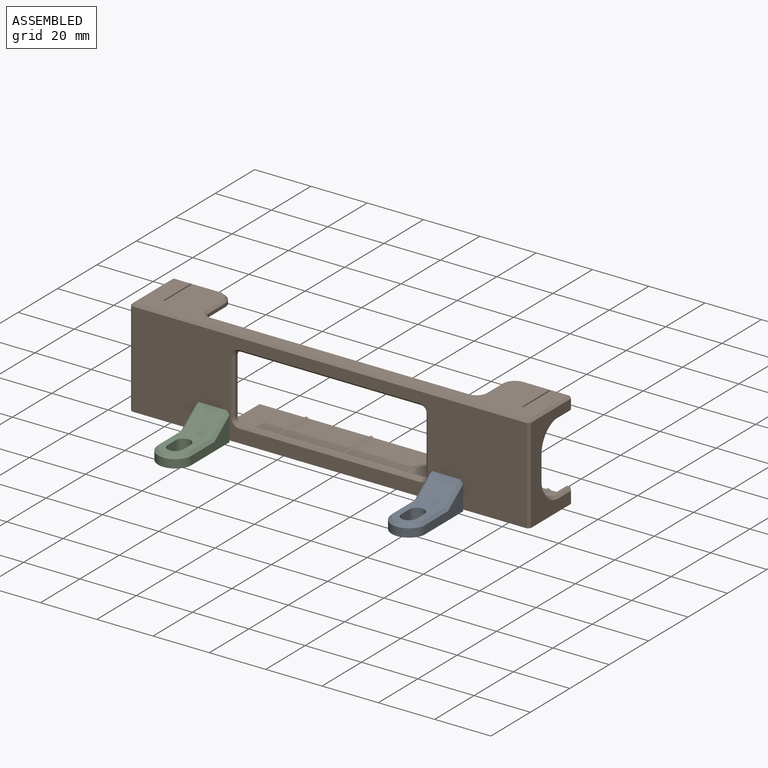
[diagram: assembled view]
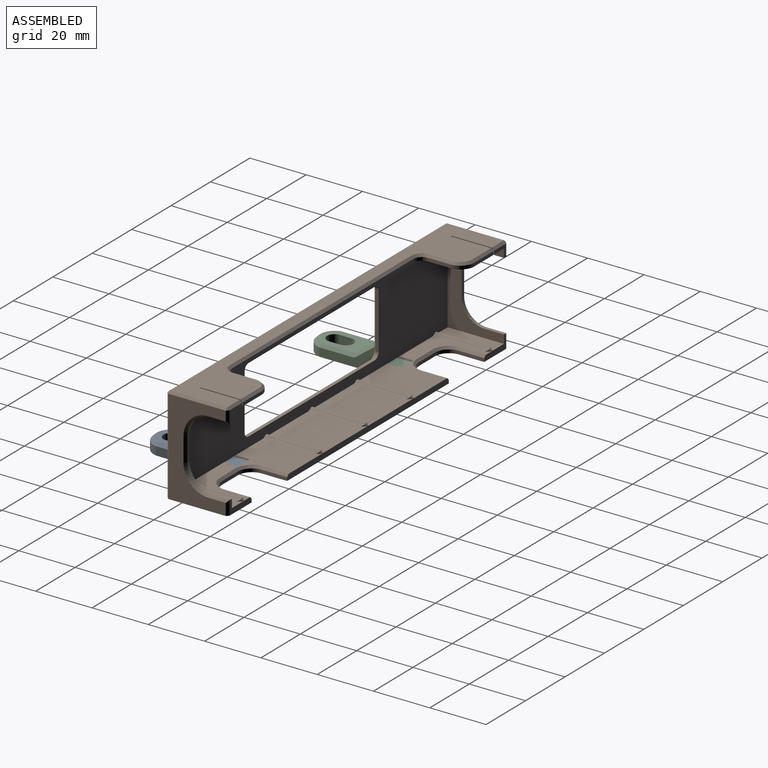
[diagram: assembled view, second angle]
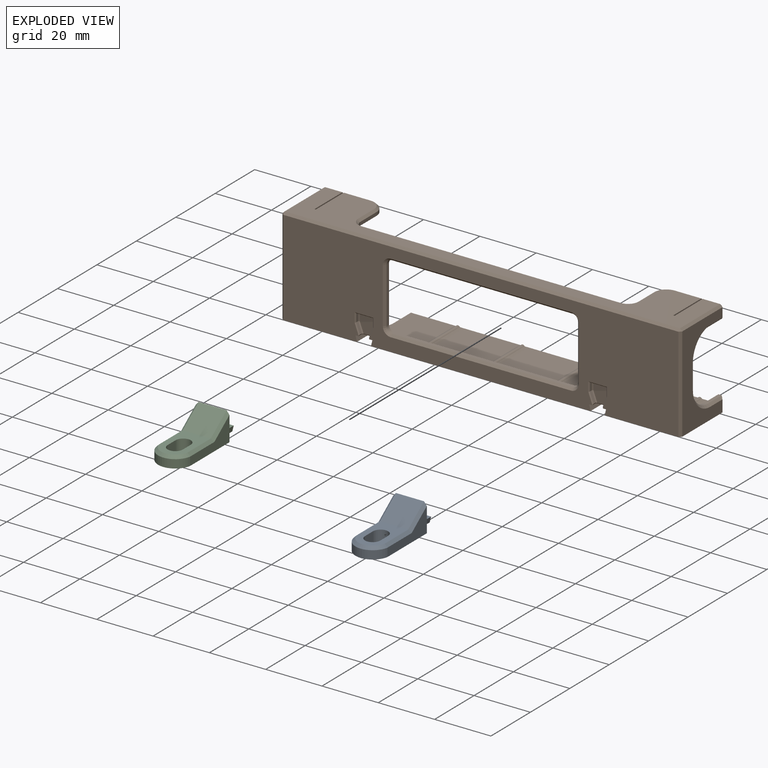
[diagram: exploded view]
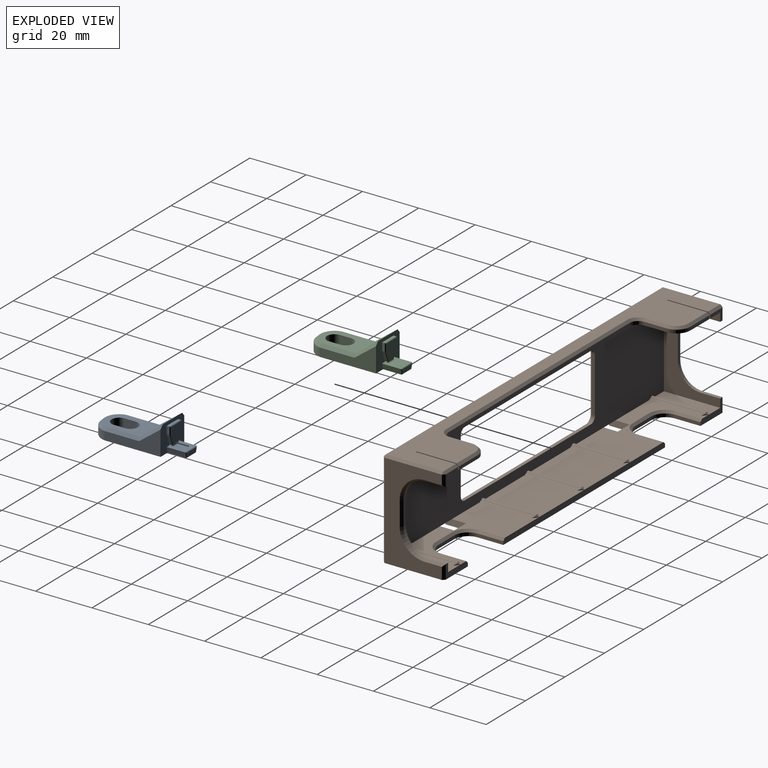
[diagram: exploded view, second angle]
ASSEMBLY  parts=3 mates=2
PART A: 40 faces, bbox 12x31.8x10 mm
  f0: plane 12x10mm, normal (0,1,0), area 74.6mm2, adj f1,f2,f3,f4,f5,f7,f8,f15
  f1: plane 6.6x5.8mm, normal (0,0,1), area 33.7mm2, adj f0,f7,f8,f27,f30,f32,f34,f35
  f2: plane 20x8.75mm, normal (1,0,0), area 82mm2, adj f0,f3,f10,f15,f17
  f3: plane 31.6x12mm, normal (0,0,-1), area 272.3mm2, adj f0,f2,f4,f7,f8,f10,f11,f12
  f4: plane 20x8.75mm, normal (-1,0,0), area 82mm2, adj f0,f3,f10,f16,f18
  f5: plane 10x8mm, normal (0,-0.6,0.8), area 100mm2, adj f0,f6,f15,f16
  f6: plane 16x10mm, normal (0,0,1), area 105.2mm2, adj f5,f11,f12,f13,f14,f17,f18,f19
  f7: plane 6.6x2mm, normal (0.97,0,-0.24), area 13.6mm2, adj f0,f1,f3,f39
  f8: plane 6.6x2mm, normal (-0.97,0,-0.24), area 13.6mm2, adj f0,f1,f3,f36
  f9: plane 5.29x1.6mm, normal (0,1,0), area 7.8mm2, adj f36,f37,f38,f39
  f10: cylinder r=6.1mm len=12mm, axis (0,0,-1), area 50.9mm2, adj f2,f3,f4,f19
  f11: cylinder r=2.7mm len=5.4mm, axis (0,0,-1), area 33.9mm2, adj f3,f6,f12,f13
  f12: plane 4x4mm, normal (1,0,0), area 16mm2, adj f3,f6,f11,f14
  f13: plane 4x4mm, normal (-1,0,0), area 16mm2, adj f3,f6,f11,f14
  f14: cylinder r=2.7mm len=5.4mm, axis (0,0,-1), area 33.9mm2, adj f3,f6,f12,f13
  f15: plane 8x7mm, normal (0.71,-0.42,0.57), area 13.8mm2, adj f0,f2,f5,f17
  f16: plane 8x7mm, normal (-0.71,-0.42,0.57), area 13.8mm2, adj f0,f4,f5,f18
  f17: plane 12.34x1.01mm, normal (0.71,0,0.71), area 17.1mm2, adj f2,f6,f15,f19
  f18: plane 12.34x1.01mm, normal (-0.71,0,0.71), area 17.1mm2, adj f4,f6,f16,f19
  f19: cone r=6.1mm half-angle=45deg, axis (0,0,-1), area 21.9mm2, adj f6,f10,f17,f18
  f20: plane 3.73x1.4mm, normal (-0.94,0,-0.35), area 4mm2, adj f0,f21,f33,f35
  f21: plane 2.8x1mm, normal (-1,0,0), area 2.8mm2, adj f0,f20,f22,f31
  f22: plane 5.8x1mm, normal (0,0,1), area 5.8mm2, adj f0,f21,f23,f29
  f23: plane 2.8x1mm, normal (1,0,0), area 2.8mm2, adj f0,f22,f24,f26
  f24: plane 3.73x1.4mm, normal (0.94,0,-0.35), area 4mm2, adj f0,f23,f27,f28
  f25: plane 6.4x5.4mm, normal (0,1,0), area 29mm2, adj f26,f28,f29,f31,f32,f33
  f26: plane 2.8x0.2mm, normal (0.71,0.71,0), area 0.8mm2, adj f23,f25,f28,f29
  f27: plane 1x0.27mm, normal (0.82,0,0.57), area 0.3mm2, adj f0,f1,f24,f30
  f28: plane 3.84x1.64mm, normal (0.66,0.71,-0.25), area 1.1mm2, adj f24,f25,f26,f30
  f29: plane 5.8x0.2mm, normal (0,0.71,0.71), area 1.6mm2, adj f22,f25,f26,f31
  f30: bspline ~0.43x0.4mm, area 0.1mm2, adj f1,f27,f28,f32
  f31: plane 2.8x0.2mm, normal (-0.71,0.71,0), area 0.8mm2, adj f21,f25,f29,f33
  f32: plane 2.52x0.2mm, normal (0,0.71,0.71), area 0.7mm2, adj f1,f25,f30,f34
  f33: plane 3.84x1.64mm, normal (-0.66,0.71,-0.25), area 1.1mm2, adj f20,f25,f31,f34
  f34: bspline ~0.43x0.4mm, area 0.1mm2, adj f1,f32,f33,f35
  f35: plane 1x0.27mm, normal (-0.82,0,0.57), area 0.3mm2, adj f0,f1,f20,f34
  f36: plane 2x0.66mm, normal (-0.69,0.71,-0.17), area 0.5mm2, adj f8,f9,f37,f38
  f37: plane 5.8x0.2mm, normal (0,0.71,0.71), area 1.6mm2, adj f1,f9,f36,f39
  f38: plane 4.8x0.2mm, normal (0,0.71,-0.71), area 1.3mm2, adj f3,f9,f36,f39
  f39: plane 2x0.66mm, normal (0.69,0.71,-0.17), area 0.5mm2, adj f7,f9,f37,f38
PART B: 187 faces, bbox 142x22x34.6 mm
  f0: plane 2x1.71mm, normal (0,0,-1), area 2.3mm2, adj f2,f16,f71,f174,f176
  f1: plane 2x1.71mm, normal (0,0,-1), area 2.3mm2, adj f2,f16,f67,f159,f161
  f2: plane 140.4x33.8mm, normal (0,-1,0), area 2891.6mm2, adj f0,f1,f3,f12,f66,f67,f69,f70
  f3: plane 2x1.71mm, normal (0,0,-1), area 2.3mm2, adj f2,f16,f66,f149,f153
  f4: plane 22.8x20mm, normal (0,0,1), area 402.1mm2, adj f10,f16,f78,f81,f182,f183
  f5: plane 22.8x20mm, normal (0,0,1), area 402.1mm2, adj f10,f16,f78,f80,f184,f185
  f6: plane 39.8x20mm, normal (0,0,1), area 436.4mm2, adj f10,f11,f16,f70,f71,f72,f79,f80
  f7: plane 39.8x20mm, normal (0,0,1), area 436.4mm2, adj f10,f13,f16,f66,f67,f68,f81,f82
  f8: plane 20x5.9mm, normal (0,0,1), area 91mm2, adj f13,f16,f22,f82,f177
  f9: plane 20x5.9mm, normal (0,0,1), area 91mm2, adj f11,f16,f21,f79,f180
  f10: plane 82x2.1mm, normal (0,1,0), area 163.4mm2, adj f4,f5,f6,f7,f12,f58,f60,f78
  f11: plane 11.2x5mm, normal (0,1,0), area 25.7mm2, adj f6,f9,f12,f21,f51,f57,f79,f96
  f12: plane 142x22mm, normal (0,0,-1), area 2570.2mm2, adj f2,f10,f11,f13,f15,f23,f56,f57
  f13: plane 11.2x5mm, normal (0,1,0), area 25.7mm2, adj f7,f8,f12,f22,f50,f61,f82,f101
  f14: plane 6.2x4.2mm, normal (0,1,0), area 11mm2, adj f18,f22,f32,f49,f116,f117
  f15: plane 33.8x20.4mm, normal (-1,0,0), area 329.8mm2, adj f12,f123,f124,f126,f128,f129,f131,f132
  f16: plane 138x30.6mm, normal (0,1,0), area 2615mm2, adj f0,f1,f3,f4,f5,f6,f7,f8
  f17: plane 140.4x20.4mm, normal (0,0,1), area 1255mm2, adj f32,f33,f34,f35,f36,f37,f83,f84
  f18: plane 138x20mm, normal (0,0,-1), area 1170.1mm2, adj f14,f16,f19,f20,f21,f22,f24,f25
  f19: plane 6.2x4.2mm, normal (0,1,0), area 11mm2, adj f18,f21,f36,f55,f127,f132
  f20: plane 9.5x1.2mm, normal (0,1,0), area 11.4mm2, adj f18,f25,f33,f83
  f21: plane 30.6x20mm, normal (1,0,0), area 270.5mm2, adj f9,f11,f16,f18,f19,f51,f52,f53
  f22: plane 30.6x20mm, normal (-1,0,0), area 270.5mm2, adj f8,f13,f14,f16,f18,f46,f47,f48
  f23: plane 33.8x20.4mm, normal (1,0,0), area 329.8mm2, adj f12,f110,f111,f112,f113,f114,f115,f117
  f24: plane 9.5x1.2mm, normal (0,1,0), area 11.4mm2, adj f18,f26,f35,f91
  f25: cylinder r=5mm len=5mm, axis (0,0,1), area 9.4mm2, adj f18,f20,f31,f84
  f26: cylinder r=5mm len=5mm, axis (0,0,1), area 9.4mm2, adj f18,f24,f27,f90
  f27: plane 8x1.2mm, normal (1,0,0), area 9.6mm2, adj f18,f26,f28,f89
  f28: cylinder r=3mm len=3mm, axis (0,0,1), area 5.7mm2, adj f18,f27,f29,f88
  f29: plane 92x1.2mm, normal (0,1,0), area 110.4mm2, adj f18,f28,f30,f87
  f30: cylinder r=3mm len=3mm, axis (0,0,1), area 5.7mm2, adj f18,f29,f31,f86
  f31: plane 8x1.2mm, normal (-1,0,0), area 9.6mm2, adj f18,f25,f30,f85
  f32: plane 15x2mm, normal (-1,0,0), area 29.7mm2, adj f14,f17,f18,f34,f116
  f33: plane 15x2mm, normal (1,0,0), area 29.7mm2, adj f17,f18,f20,f34,f83
  f34: plane 2x0.5mm, normal (0,1,0), area 1mm2, adj f17,f18,f32,f33
  f35: plane 15x2mm, normal (-1,0,0), area 29.7mm2, adj f17,f18,f24,f37,f91
  f36: plane 15x2mm, normal (1,0,0), area 29.7mm2, adj f17,f18,f19,f37,f127
  f37: plane 2x0.5mm, normal (0,1,0), area 1mm2, adj f17,f18,f35,f36
  f38: cylinder r=2mm len=2mm, axis (0,1,0), area 3.8mm2, adj f16,f39,f43,f108
  f39: plane 19.6x1.2mm, normal (1,0,0), area 23.5mm2, adj f16,f38,f40,f109
  f40: cylinder r=2mm len=2mm, axis (0,1,0), area 3.8mm2, adj f16,f39,f41,f107
  f41: plane 64x1.2mm, normal (0,0,-1), area 76.8mm2, adj f16,f40,f42,f105
  f42: cylinder r=2mm len=2mm, axis (0,1,0), area 3.8mm2, adj f16,f41,f44,f103
  f43: plane 64x1.2mm, normal (0,0,1), area 76.8mm2, adj f16,f38,f45,f106
  f44: plane 19.6x1.2mm, normal (-1,0,0), area 23.5mm2, adj f16,f42,f45,f102
  f45: cylinder r=2mm len=2mm, axis (0,1,0), area 3.8mm2, adj f16,f43,f44,f104
  f46: cylinder r=8mm len=8mm, axis (-1,0,0), area 15.1mm2, adj f22,f47,f49,f114
  f47: plane 8.6x1.2mm, normal (0,1,0), area 10.3mm2, adj f22,f46,f48,f113
  f48: cylinder r=8mm len=8mm, axis (-1,0,0), area 15.1mm2, adj f22,f47,f50,f112
  f49: plane 7x1.2mm, normal (0,0,-1), area 8.4mm2, adj f14,f22,f46,f115
  f50: plane 7x1.2mm, normal (0,0,1), area 8.4mm2, adj f13,f22,f48,f111
  f51: plane 7x1.2mm, normal (0,0,1), area 8.4mm2, adj f11,f21,f52,f126
  f52: cylinder r=8mm len=8mm, axis (-1,0,0), area 15.1mm2, adj f21,f51,f53,f129
  f53: plane 8.6x1.2mm, normal (0,1,0), area 10.3mm2, adj f21,f52,f54,f131
  f54: cylinder r=8mm len=8mm, axis (-1,0,0), area 15.1mm2, adj f21,f53,f55,f133
  f55: plane 7x1.2mm, normal (0,0,-1), area 8.4mm2, adj f19,f21,f54,f134
  f56: plane 8x1.2mm, normal (0,1,0), area 9.6mm2, adj f12,f62,f63,f94
  f57: plane 9x1.2mm, normal (1,0,0), area 10.8mm2, adj f11,f12,f63,f96
  f58: plane 9x1.2mm, normal (-1,0,0), area 10.8mm2, adj f10,f12,f62,f92
  f59: plane 8x1.2mm, normal (0,1,0), area 9.6mm2, adj f12,f64,f65,f99
  f60: plane 9x1.2mm, normal (1,0,0), area 10.8mm2, adj f10,f12,f65,f97
  f61: plane 9x1.2mm, normal (-1,0,0), area 10.8mm2, adj f12,f13,f64,f101
  f62: cylinder r=5mm len=5mm, axis (0,0,1), area 9.4mm2, adj f12,f56,f58,f93
  f63: cylinder r=5mm len=5mm, axis (0,0,-1), area 9.4mm2, adj f12,f56,f57,f95
  f64: cylinder r=5mm len=5mm, axis (0,0,1), area 9.4mm2, adj f12,f59,f61,f100
  f65: cylinder r=5mm len=5mm, axis (0,0,-1), area 9.4mm2, adj f12,f59,f60,f98
  f66: plane 7x2mm, normal (0.97,0,0.24), area 14.4mm2, adj f2,f3,f7,f12,f68
  f67: plane 7x2mm, normal (-0.97,0,0.24), area 14.4mm2, adj f1,f2,f7,f12,f68
  f68: plane 6x2mm, normal (0,-1,0), area 11mm2, adj f7,f12,f66,f67
  f69: plane 2x1.71mm, normal (0,0,-1), area 2.3mm2, adj f2,f16,f70,f164,f168
  f70: plane 7x2mm, normal (0.97,0,0.24), area 14.4mm2, adj f2,f6,f12,f69,f72
  f71: plane 7x2mm, normal (-0.97,0,0.24), area 14.4mm2, adj f0,f2,f6,f12,f72
  f72: plane 6x2mm, normal (0,-1,0), area 11mm2, adj f6,f12,f70,f71
  f73: cylinder r=0.8mm len=19.3mm, axis (0,-1,0), area 30.3mm2, adj f16,f82,f177,f178
  f74: cylinder r=0.8mm len=19.3mm, axis (0,-1,0), area 30.3mm2, adj f16,f81,f181,f182
  f75: cylinder r=0.8mm len=19.3mm, axis (0,-1,0), area 30.3mm2, adj f16,f79,f179,f180
  f76: cylinder r=0.8mm len=19.3mm, axis (0,-1,0), area 30.3mm2, adj f16,f80,f185,f186
  f77: cylinder r=0.8mm len=19.3mm, axis (0,-1,0), area 30.3mm2, adj f16,f78,f183,f184
  f78: cone r=0.1mm half-angle=45deg, axis (0,-1,0), area 1.8mm2, adj f4,f5,f10,f77,f183,f184
  f79: cone r=0.8mm half-angle=45deg, axis (0,-1,0), area 1.8mm2, adj f6,f9,f11,f75,f179,f180
  f80: cone r=0.8mm half-angle=45deg, axis (0,-1,0), area 1.8mm2, adj f5,f6,f10,f76,f185,f186
  f81: cone r=0.1mm half-angle=45deg, axis (0,-1,0), area 1.8mm2, adj f4,f7,f10,f74,f181,f182
  f82: cone r=0.1mm half-angle=45deg, axis (0,-1,0), area 1.8mm2, adj f7,f8,f13,f73,f177,f178
  f83: plane 9.5x0.8mm, normal (0,0.71,0.71), area 10.7mm2, adj f17,f20,f33,f84
  f84: cone r=4.2mm half-angle=45deg, axis (0,0,-1), area 8.2mm2, adj f17,f25,f83,f85
  f85: plane 8x0.8mm, normal (-0.71,0,0.71), area 9.1mm2, adj f17,f31,f84,f86
  f86: cone r=3mm half-angle=45deg, axis (0,0,1), area 6mm2, adj f17,f30,f85,f87
  f87: plane 92x0.8mm, normal (0,0.71,0.71), area 104.1mm2, adj f17,f29,f86,f88
  f88: cone r=3mm half-angle=45deg, axis (0,0,1), area 6mm2, adj f17,f28,f87,f89
  f89: plane 8x0.8mm, normal (0.71,0,0.71), area 9.1mm2, adj f17,f27,f88,f90
  f90: cone r=4.2mm half-angle=45deg, axis (0,0,-1), area 8.2mm2, adj f17,f26,f89,f91
  f91: plane 9.5x0.8mm, normal (0,0.71,0.71), area 10.7mm2, adj f17,f24,f35,f90
  f92: plane 9x0.8mm, normal (-0.71,0,0.71), area 10.2mm2, adj f6,f10,f58,f93
  f93: cone r=5.8mm half-angle=45deg, axis (0,0,1), area 9.6mm2, adj f6,f62,f92,f94
  f94: plane 8x0.8mm, normal (0,0.71,0.71), area 9.1mm2, adj f6,f56,f93,f95
  f95: cone r=5.8mm half-angle=45deg, axis (0,0,1), area 9.6mm2, adj f6,f63,f94,f96
  f96: plane 9x0.8mm, normal (0.71,0,0.71), area 10.2mm2, adj f6,f11,f57,f95
  f97: plane 9x0.8mm, normal (0.71,0,0.71), area 10.2mm2, adj f7,f10,f60,f98
  f98: cone r=5.8mm half-angle=45deg, axis (0,0,1), area 9.6mm2, adj f7,f65,f97,f99
  f99: plane 8x0.8mm, normal (0,0.71,0.71), area 9.1mm2, adj f7,f59,f98,f100
  f100: cone r=5.8mm half-angle=45deg, axis (0,0,1), area 9.6mm2, adj f7,f64,f99,f101
  f101: plane 9x0.8mm, normal (-0.71,0,0.71), area 10.2mm2, adj f7,f13,f61,f100
  f102: plane 19.6x0.8mm, normal (-0.71,-0.71,0), area 22.2mm2, adj f2,f44,f103,f104
  f103: cone r=2.8mm half-angle=45deg, axis (0,-1,0), area 4.3mm2, adj f2,f42,f102,f105
  f104: cone r=2.8mm half-angle=45deg, axis (0,-1,0), area 4.3mm2, adj f2,f45,f102,f106
  f105: plane 64x0.8mm, normal (0,-0.71,-0.71), area 72.4mm2, adj f2,f41,f103,f107
  f106: plane 64x0.8mm, normal (0,-0.71,0.71), area 72.4mm2, adj f2,f43,f104,f108
  f107: cone r=2.8mm half-angle=45deg, axis (0,-1,0), area 4.3mm2, adj f2,f40,f105,f109
  f108: cone r=2.8mm half-angle=45deg, axis (0,-1,0), area 4.3mm2, adj f2,f38,f106,f109
  f109: plane 19.6x0.8mm, normal (0.71,-0.71,0), area 22.2mm2, adj f2,f39,f107,f108
  f110: plane 5x0.8mm, normal (0.71,0.71,0), area 5.2mm2, adj f12,f13,f23,f111
  f111: plane 7x0.8mm, normal (0.71,0,0.71), area 7.5mm2, adj f23,f50,f110,f112
  f112: cone r=8.8mm half-angle=45deg, axis (1,0,0), area 14.9mm2, adj f23,f48,f111,f113
  f113: plane 8.6x0.8mm, normal (0.71,0.71,0), area 9.7mm2, adj f23,f47,f112,f114
  f114: cone r=8.8mm half-angle=45deg, axis (1,0,0), area 14.9mm2, adj f23,f46,f113,f115
  f115: plane 7x0.8mm, normal (0.71,0,-0.71), area 7.5mm2, adj f23,f49,f114,f117
  f116: plane 6.2x0.8mm, normal (0,0.71,0.71), area 7mm2, adj f14,f17,f32,f118
  f117: plane 4.2x0.8mm, normal (0.71,0.71,0), area 4.3mm2, adj f14,f23,f115,f118
  f118: plane 0.8x0.8mm, normal (0.58,0.58,0.58), area 0.6mm2, adj f116,f117,f119
  f119: plane 20.4x0.8mm, normal (0.71,0,0.71), area 23.1mm2, adj f17,f23,f118,f121
  f120: plane 33.8x0.8mm, normal (0.71,-0.71,0), area 38.2mm2, adj f2,f12,f23,f121
  f121: plane 0.8x0.8mm, normal (0.58,-0.58,0.58), area 0.6mm2, adj f119,f120,f122
  f122: plane 140.4x0.8mm, normal (0,-0.71,0.71), area 158.8mm2, adj f2,f17,f121,f125
  f123: plane 33.8x0.8mm, normal (-0.71,-0.71,0), area 38.2mm2, adj f2,f12,f15,f125
  f124: plane 5x0.8mm, normal (-0.71,0.71,0), area 5.2mm2, adj f11,f12,f15,f126
  f125: plane 0.8x0.8mm, normal (-0.58,-0.58,0.58), area 0.6mm2, adj f122,f123,f128
  f126: plane 7x0.8mm, normal (-0.71,0,0.71), area 7.5mm2, adj f15,f51,f124,f129
  f127: plane 6.2x0.8mm, normal (0,0.71,0.71), area 7mm2, adj f17,f19,f36,f130
  f128: plane 20.4x0.8mm, normal (-0.71,0,0.71), area 23.1mm2, adj f15,f17,f125,f130
  f129: cone r=8mm half-angle=45deg, axis (-1,0,0), area 14.9mm2, adj f15,f52,f126,f131
  f130: plane 0.8x0.8mm, normal (-0.58,0.58,0.58), area 0.6mm2, adj f127,f128,f132
  f131: plane 8.6x0.8mm, normal (-0.71,0.71,0), area 9.7mm2, adj f15,f53,f129,f133
  f132: plane 4.2x0.8mm, normal (-0.71,0.71,0), area 4.3mm2, adj f15,f19,f130,f134
  f133: cone r=8mm half-angle=45deg, axis (-1,0,0), area 14.9mm2, adj f15,f54,f131,f134
  f134: plane 7x0.8mm, normal (-0.71,0,-0.71), area 7.5mm2, adj f15,f55,f132,f133
  f135: plane 3.59x1.35mm, normal (-0.94,0,0.35), area 4.2mm2, adj f136,f172,f175,f176
  f136: plane 3x1.1mm, normal (-1,0,0), area 3.3mm2, adj f135,f137,f169,f173
  f137: plane 6x1.1mm, normal (0,0,-1), area 6.6mm2, adj f136,f138,f166,f170
  f138: plane 3x1.1mm, normal (1,0,0), area 3.3mm2, adj f137,f139,f162,f167
  f139: plane 3.59x1.35mm, normal (0.94,0,0.35), area 4.2mm2, adj f138,f163,f164,f165
  f140: plane 6.4x5.4mm, normal (0,-1,0), area 29.3mm2, adj f162,f165,f166,f169,f171,f172
  f141: plane 3.59x1.35mm, normal (0.94,0,0.35), area 4.2mm2, adj f145,f148,f149,f150
  f142: plane 3.59x1.35mm, normal (-0.94,0,0.35), area 4.2mm2, adj f143,f157,f160,f161
  f143: plane 3x1.1mm, normal (-1,0,0), area 3.3mm2, adj f142,f144,f154,f158
  f144: plane 6x1.1mm, normal (0,0,-1), area 6.6mm2, adj f143,f145,f151,f155
  f145: plane 3x1.1mm, normal (1,0,0), area 3.3mm2, adj f141,f144,f147,f152
  f146: plane 6.4x5.4mm, normal (0,-1,0), area 29.3mm2, adj f147,f150,f151,f154,f156,f157
  f147: plane 3x0.3mm, normal (0.71,-0.71,0), area 1.2mm2, adj f145,f146,f150,f151
  f148: plane 3.89x1.65mm, normal (0.66,-0.71,0.25), area 1.7mm2, adj f2,f141,f149,f152
  f149: plane 1.4x0.41mm, normal (0.82,0,-0.57), area 0.6mm2, adj f2,f3,f141,f148,f153
  f150: plane 3.75x1.71mm, normal (0.66,-0.71,0.25), area 1.7mm2, adj f141,f146,f147,f153
  f151: plane 6x0.3mm, normal (0,-0.71,-0.71), area 2.4mm2, adj f144,f146,f147,f154
  f152: plane 3.35x0.3mm, normal (0.71,-0.71,0), area 1.3mm2, adj f2,f145,f148,f155
  f153: bspline ~0.64x0.6mm, area 0.3mm2, adj f3,f149,f150,f156
  f154: plane 3x0.3mm, normal (-0.71,-0.71,0), area 1.2mm2, adj f143,f146,f151,f157
  f155: plane 6.6x0.3mm, normal (0,-0.71,-0.71), area 2.7mm2, adj f2,f144,f152,f158
  f156: plane 2.58x0.3mm, normal (0,-0.71,-0.71), area 1.1mm2, adj f16,f146,f153,f159
  f157: plane 3.75x1.71mm, normal (-0.66,-0.71,0.25), area 1.7mm2, adj f142,f146,f154,f159
  f158: plane 3.35x0.3mm, normal (-0.71,-0.71,0), area 1.3mm2, adj f2,f143,f155,f160
  f159: bspline ~0.64x0.6mm, area 0.3mm2, adj f1,f156,f157,f161
  f160: plane 3.89x1.65mm, normal (-0.66,-0.71,0.25), area 1.7mm2, adj f2,f142,f158,f161
  f161: plane 1.4x0.41mm, normal (-0.82,0,-0.57), area 0.6mm2, adj f1,f2,f142,f159,f160
  f162: plane 3x0.3mm, normal (0.71,-0.71,0), area 1.2mm2, adj f138,f140,f165,f166
  f163: plane 3.89x1.65mm, normal (0.66,-0.71,0.25), area 1.7mm2, adj f2,f139,f164,f167
  f164: plane 1.4x0.41mm, normal (0.82,0,-0.57), area 0.6mm2, adj f2,f69,f139,f163,f168
  f165: plane 3.75x1.71mm, normal (0.66,-0.71,0.25), area 1.7mm2, adj f139,f140,f162,f168
  f166: plane 6x0.3mm, normal (0,-0.71,-0.71), area 2.4mm2, adj f137,f140,f162,f169
  f167: plane 3.35x0.3mm, normal (0.71,-0.71,0), area 1.3mm2, adj f2,f138,f163,f170
  f168: bspline ~0.64x0.6mm, area 0.3mm2, adj f69,f164,f165,f171
  f169: plane 3x0.3mm, normal (-0.71,-0.71,0), area 1.2mm2, adj f136,f140,f166,f172
  f170: plane 6.6x0.3mm, normal (0,-0.71,-0.71), area 2.7mm2, adj f2,f137,f167,f173
  f171: plane 2.58x0.3mm, normal (0,-0.71,-0.71), area 1.1mm2, adj f16,f140,f168,f174
  f172: plane 3.75x1.71mm, normal (-0.66,-0.71,0.25), area 1.7mm2, adj f135,f140,f169,f174
  f173: plane 3.35x0.3mm, normal (-0.71,-0.71,0), area 1.3mm2, adj f2,f136,f170,f175
  f174: bspline ~0.64x0.6mm, area 0.3mm2, adj f0,f171,f172,f176
  f175: plane 3.89x1.65mm, normal (-0.66,-0.71,0.25), area 1.7mm2, adj f2,f135,f173,f176
  f176: plane 1.4x0.41mm, normal (-0.82,0,-0.57), area 0.6mm2, adj f0,f2,f135,f174,f175
  f177: plane 19.3x0.83mm, normal (0.47,0,0.88), area 17.9mm2, adj f8,f16,f73,f82
  f178: plane 19.3x0.83mm, normal (-0.47,0,0.88), area 17.9mm2, adj f7,f16,f73,f82
  f179: plane 19.3x0.83mm, normal (0.47,0,0.88), area 17.9mm2, adj f6,f16,f75,f79
  f180: plane 19.3x0.83mm, normal (-0.47,0,0.88), area 17.9mm2, adj f9,f16,f75,f79
  f181: plane 19.3x0.83mm, normal (0.47,0,0.88), area 17.9mm2, adj f7,f16,f74,f81
  f182: plane 19.3x0.83mm, normal (-0.47,0,0.88), area 17.9mm2, adj f4,f16,f74,f81
  f183: plane 19.3x0.83mm, normal (0.47,0,0.88), area 17.9mm2, adj f4,f16,f77,f78
  f184: plane 19.3x0.83mm, normal (-0.47,0,0.88), area 17.9mm2, adj f5,f16,f77,f78
  f185: plane 19.3x0.83mm, normal (0.47,0,0.88), area 17.9mm2, adj f5,f16,f76,f80
  f186: plane 19.3x0.83mm, normal (-0.47,0,0.88), area 17.9mm2, adj f6,f16,f76,f80
PART C: same geometry as A
PLACE A t=(35.5,-22,-33.2)mm
PLACE B at identity
PLACE C t=(-47.5,-22,-33.2)mm
MATE planar A.f0 <-> B.f2  axis (0,1,0) through (43.79,-22,-31.2)mm
MATE planar C.f0 <-> B.f2  axis (0,1,0) through (-39.21,-22,-31.2)mm
